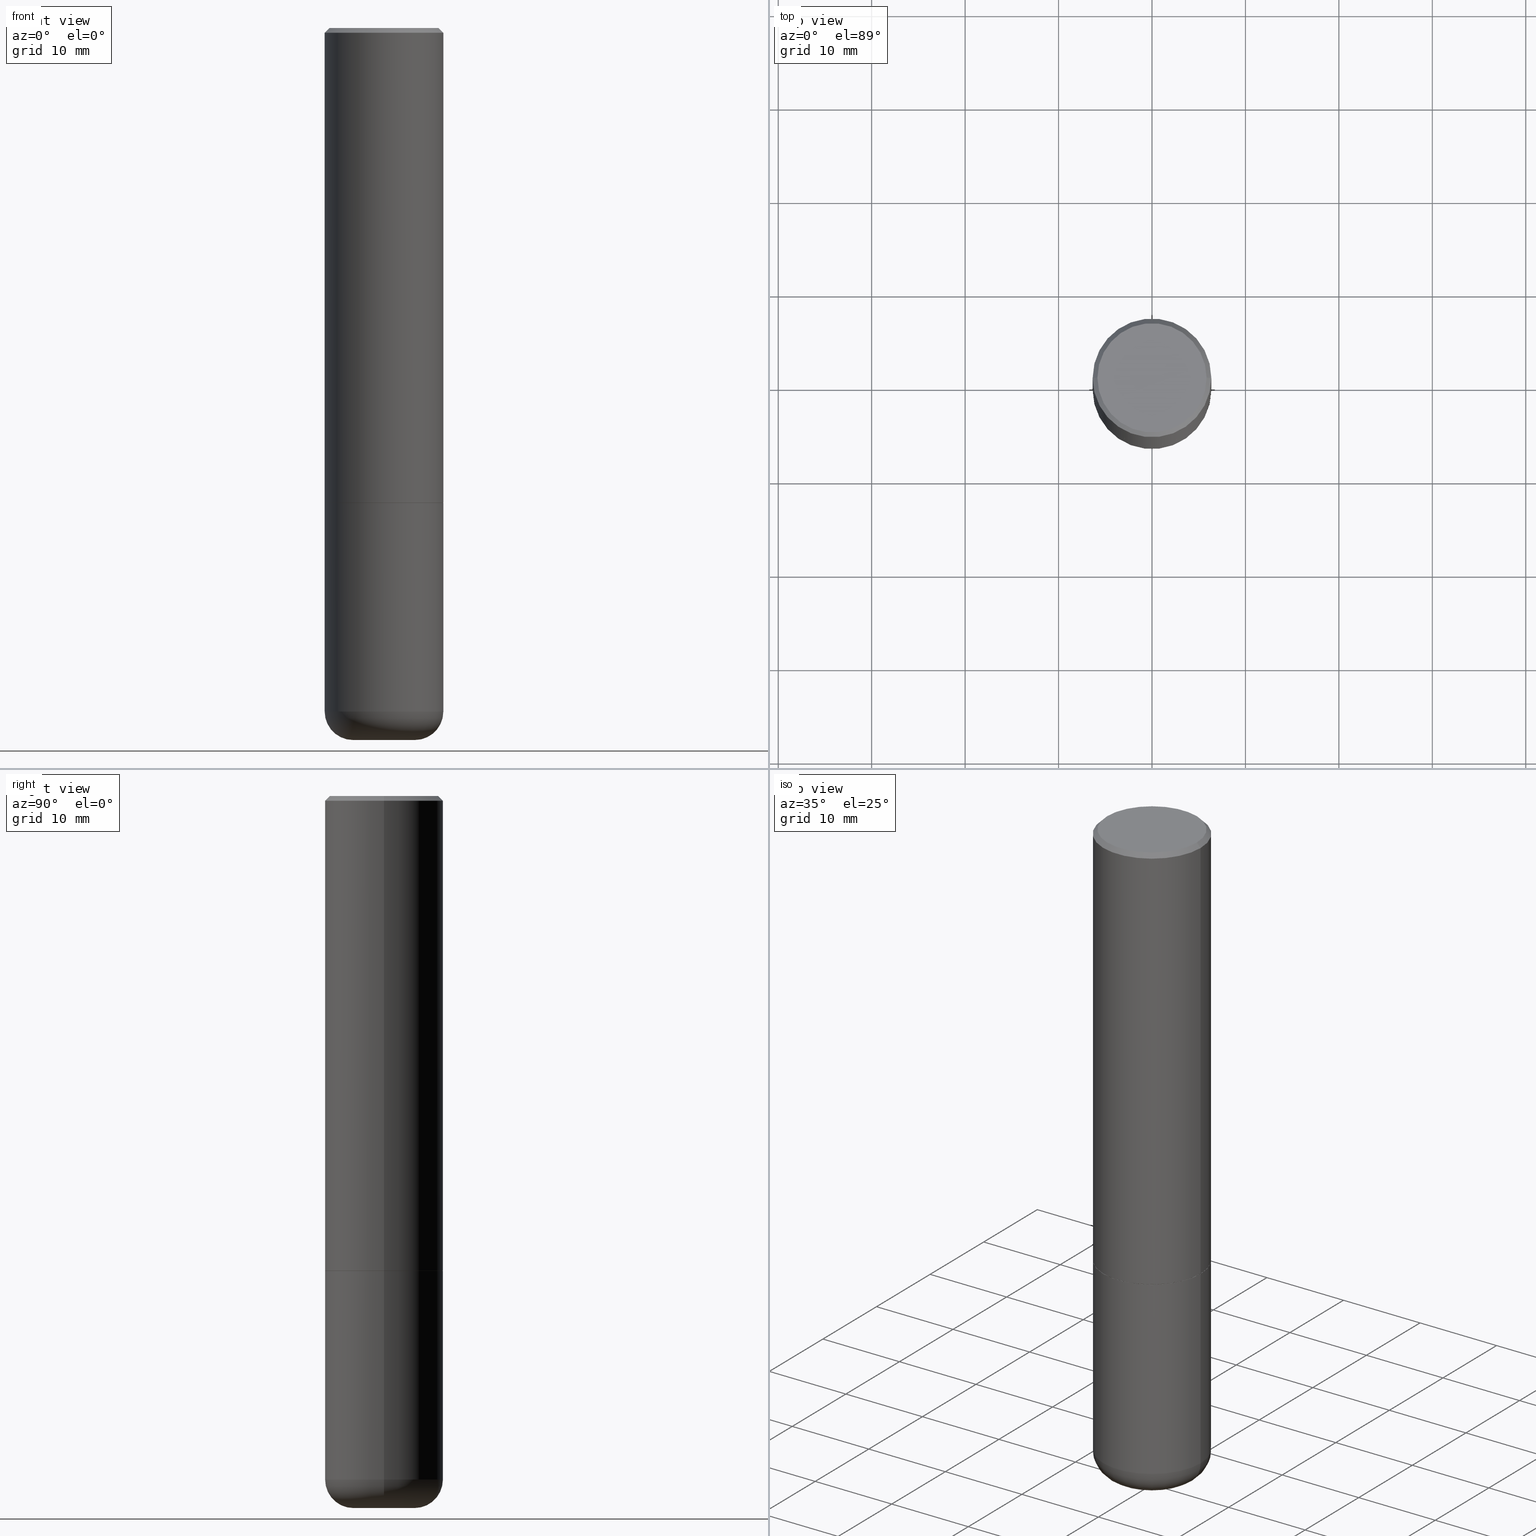
[diagram: canonical four-view strip — front | top / right | iso, engineering-drawing reading convention]
A machine part, canonical four-view strip (front | top / right | iso — engineering-drawing reading convention). The complete STEP part file that produces these views, byte-faithful:
ISO-10303-21;
HEADER;
FILE_DESCRIPTION (( 'STEP AP203' ),
    '1' );
FILE_NAME ('38542.STEP',
    '2024-03-03T03:59:35',
    ( '' ),
    ( '' ),
    'SwSTEP 2.0',
    'SolidWorks 2023',
    '' );
FILE_SCHEMA (( 'CONFIG_CONTROL_DESIGN' ));
ENDSEC;

DATA;
#1 = DIRECTION ( 'NONE',  ( -2.445468806185136597E-29, 3.491481338843145583E-15, 1.000000000000000000 ) ) ;
#2 = ORIENTED_EDGE ( 'NONE', *, *, #172, .F. ) ;
#3 = CARTESIAN_POINT ( 'NONE',  ( 4.890937612370287172E-31, -6.982962677686310098E-17, -0.02000000000000005593 ) ) ;
#4 = TOROIDAL_SURFACE ( 'NONE', #195, 0.1300000000000000044, 0.1199999999999999123 ) ;
#5 = CARTESIAN_POINT ( 'NONE',  ( 4.890937612370274875E-29, -6.982962677686292743E-15, -2.000000000000000444 ) ) ;
#6 = DIRECTION ( 'NONE',  ( -2.445468806185136597E-29, 3.491481338843145583E-15, 1.000000000000000000 ) ) ;
#7 = VERTEX_POINT ( 'NONE', #149 ) ;
#8 = CYLINDRICAL_SURFACE ( 'NONE', #22, 0.2500000000000001110 ) ;
#9 = EDGE_CURVE ( 'NONE', #396, #68, #80, .T. ) ;
#10 = LINE ( 'NONE', #102, #81 ) ;
#11 = LINE ( 'NONE', #135, #163 ) ;
#12 = AXIS2_PLACEMENT_3D ( 'NONE', #133, #42, #79 ) ;
#13 = AXIS2_PLACEMENT_3D ( 'NONE', #158, #315, #124 ) ;
#14 = AXIS2_PLACEMENT_3D ( 'NONE', #395, #6, #104 ) ;
#15 = COORDINATED_UNIVERSAL_TIME_OFFSET ( 5, 0, .BEHIND. ) ;
#16 = DATE_AND_TIME ( #178, #38 ) ;
#17 = ADVANCED_FACE ( 'NONE', ( #241 ), #4, .T. ) ;
#18 = CALENDAR_DATE ( 2024, 2, 3 ) ;
#19 = FACE_OUTER_BOUND ( 'NONE', #61, .T. ) ;
#20 = ORIENTED_EDGE ( 'NONE', *, *, #47, .F. ) ;
#21 = CIRCLE ( 'NONE', #101, 0.2489999999999999991 ) ;
#22 = AXIS2_PLACEMENT_3D ( 'NONE', #203, #107, #231 ) ;
#23 = PERSON_AND_ORGANIZATION ( #123, #334 ) ;
#24 = ORIENTED_EDGE ( 'NONE', *, *, #75, .T. ) ;
#25 = DIRECTION ( 'NONE',  ( 1.000000000000000000, 0.000000000000000000, 0.000000000000000000 ) ) ;
#26 = CARTESIAN_POINT ( 'NONE',  ( 7.336406418555409790E-29, -1.047444401652943635E-14, -3.000000000000000444 ) ) ;
#27 = ADVANCED_FACE ( 'NONE', ( #344 ), #110, .T. ) ;
#28 = CARTESIAN_POINT ( 'NONE',  ( 4.890937612370287172E-31, -6.982962677686310098E-17, -0.02000000000000005593 ) ) ;
#29 = AXIS2_PLACEMENT_3D ( 'NONE', #74, #92, #348 ) ;
#30 = CC_DESIGN_APPROVAL ( #230, ( #341 ) ) ;
#31 = LINE ( 'NONE', #96, #247 ) ;
#32 = ORIENTED_EDGE ( 'NONE', *, *, #162, .F. ) ;
#33 = FACE_OUTER_BOUND ( 'NONE', #189, .T. ) ;
#34 = DIRECTION ( 'NONE',  ( -2.445468806185136597E-29, 3.491481338843145583E-15, 1.000000000000000000 ) ) ;
#35 = ORIENTED_EDGE ( 'NONE', *, *, #9, .T. ) ;
#36 = DIRECTION ( 'NONE',  ( 2.438088387897960049E-29, -3.491481338843145188E-15, -1.000000000000000000 ) ) ;
#37 = AXIS2_PLACEMENT_3D ( 'NONE', #120, #1, #62 ) ;
#38 = LOCAL_TIME ( 22, 59, 35.00000000000000000, #338 ) ;
#39 = EDGE_LOOP ( 'NONE', ( #129, #353 ) ) ;
#40 = CARTESIAN_POINT ( 'NONE',  ( 0.2489999999999999991, -8.721720384430172617E-15, -2.000000000000000444 ) ) ;
#41 = EDGE_LOOP ( 'NONE', ( #322, #153, #128, #32 ) ) ;
#42 = DIRECTION ( 'NONE',  ( -2.445468806185136597E-29, 3.491481338843145583E-15, 1.000000000000000000 ) ) ;
#43 = EDGE_CURVE ( 'NONE', #410, #373, #330, .T. ) ;
#44 = CIRCLE ( 'NONE', #343, 0.1300000000000000044 ) ;
#45 = LOCAL_TIME ( 22, 59, 35.00000000000000000, #304 ) ;
#46 = CARTESIAN_POINT ( 'NONE',  ( 0.2299999999999998990, -1.681434332853598617E-15, 9.817578727232095644E-17 ) ) ;
#47 = EDGE_CURVE ( 'NONE', #373, #160, #186, .T. ) ;
#48 = DATE_TIME_ROLE ( 'creation_date' ) ;
#49 = AXIS2_PLACEMENT_3D ( 'NONE', #229, #267, #167 ) ;
#50 = APPROVAL_STATUS ( 'not_yet_approved' ) ;
#51 = DIRECTION ( 'NONE',  ( -2.445468806185136597E-29, 3.491481338843145583E-15, 1.000000000000000000 ) ) ;
#52 = DIRECTION ( 'NONE',  ( -2.445468806185136597E-29, 3.491481338843145583E-15, 1.000000000000000000 ) ) ;
#53 = CC_DESIGN_PERSON_AND_ORGANIZATION_ASSIGNMENT ( #211, #148, ( #341 ) ) ;
#54 = CARTESIAN_POINT ( 'NONE',  ( 7.042950161813194609E-29, -1.005546625586826130E-14, -2.880000000000000338 ) ) ;
#55 = EDGE_LOOP ( 'NONE', ( #415, #94, #290, #260 ) ) ;
#56 = AXIS2_PLACEMENT_3D ( 'NONE', #28, #52, #366 ) ;
#57 = AXIS2_PLACEMENT_3D ( 'NONE', #364, #358, #301 ) ;
#58 = DIRECTION ( 'NONE',  ( -2.438088387897960049E-29, 3.491481338843145188E-15, 1.000000000000000000 ) ) ;
#59 = EDGE_CURVE ( 'NONE', #410, #286, #284, .T. ) ;
#60 = DIRECTION ( 'NONE',  ( 7.105427357601001859E-15, 1.000000000000000000, -3.491481338843145583E-15 ) ) ;
#61 = EDGE_LOOP ( 'NONE', ( #115, #261 ) ) ;
#62 = DIRECTION ( 'NONE',  ( 1.000000000000000000, -6.982962677686266711E-15, 0.000000000000000000 ) ) ;
#63 = ORIENTED_EDGE ( 'NONE', *, *, #381, .T. ) ;
#64 = AXIS2_PLACEMENT_3D ( 'NONE', #236, #60, #183 ) ;
#65 = CC_DESIGN_SECURITY_CLASSIFICATION ( #240, ( #146 ) ) ;
#66 = DIRECTION ( 'NONE',  ( -2.445468806185136597E-29, 3.491481338843145583E-15, 1.000000000000000000 ) ) ;
#67 = CC_DESIGN_DATE_AND_TIME_ASSIGNMENT ( #335, #48, ( #341 ) ) ;
#68 = VERTEX_POINT ( 'NONE', #141 ) ;
#69 = CARTESIAN_POINT ( 'NONE',  ( 4.890937612370273754E-29, -6.982962677686291954E-15, -2.000000000000000444 ) ) ;
#70 = VERTEX_POINT ( 'NONE', #405 ) ;
#71 = CARTESIAN_POINT ( 'NONE',  ( 0.2500000000000000000, -8.728703347107858632E-15, -2.000000000000000444 ) ) ;
#72 = ORIENTED_EDGE ( 'NONE', *, *, #360, .T. ) ;
#73 = AXIS2_PLACEMENT_3D ( 'NONE', #350, #36, #252 ) ;
#74 = CARTESIAN_POINT ( 'NONE',  ( -2.400858252971005371E-45, 3.427789291875028588E-31, 9.817578727230945633E-17 ) ) ;
#75 = EDGE_CURVE ( 'NONE', #160, #251, #113, .T. ) ;
#76 = CARTESIAN_POINT ( 'NONE',  ( -0.2500000000000000000, 1.675911042644703577E-15, -0.02000000000000005593 ) ) ;
#77 = CARTESIAN_POINT ( 'NONE',  ( 0.000000000000000000, 0.000000000000000000, 0.000000000000000000 ) ) ;
#78 = ADVANCED_FACE ( 'NONE', ( #19 ), #84, .F. ) ;
#79 = DIRECTION ( 'NONE',  ( 1.000000000000000000, -6.982962677686265133E-15, 4.883557194083112340E-29 ) ) ;
#80 = CIRCLE ( 'NONE', #56, 0.2500000000000000000 ) ;
#81 = VECTOR ( 'NONE', #165, 39.37007874015748143 ) ;
#82 = APPROVAL_STATUS ( 'not_yet_approved' ) ;
#83 = CC_DESIGN_PERSON_AND_ORGANIZATION_ASSIGNMENT ( #23, #342, ( #146 ) ) ;
#84 = PLANE ( 'NONE',  #125 ) ;
#85 = CALENDAR_DATE ( 2024, 2, 3 ) ;
#86 = ORIENTED_EDGE ( 'NONE', *, *, #75, .F. ) ;
#87 = DIRECTION ( 'NONE',  ( 1.000000000000000000, -6.982962677686265133E-15, 4.883557194083112340E-29 ) ) ;
#88 = ADVANCED_FACE ( 'NONE', ( #181 ), #180, .T. ) ;
#89 = AXIS2_PLACEMENT_3D ( 'NONE', #285, #164, #292 ) ;
#90 = APPROVAL_STATUS ( 'not_yet_approved' ) ;
#91 = DIRECTION ( 'NONE',  ( 2.438088387897960049E-29, -3.491481338843145188E-15, -1.000000000000000000 ) ) ;
#92 = DIRECTION ( 'NONE',  ( -2.445468806185136597E-29, 3.491481338843145583E-15, 1.000000000000000000 ) ) ;
#93 = CARTESIAN_POINT ( 'NONE',  ( 4.888492143564088712E-29, -6.979471196347448158E-15, -1.999000000000000110 ) ) ;
#94 = ORIENTED_EDGE ( 'NONE', *, *, #388, .T. ) ;
#95 = AXIS2_PLACEMENT_3D ( 'NONE', #339, #51, #411 ) ;
#96 = CARTESIAN_POINT ( 'NONE',  ( 0.2489999999999999991, -8.721720384430172617E-15, -2.000000000000000444 ) ) ;
#97 = CARTESIAN_POINT ( 'NONE',  ( 4.890937612370274875E-29, -6.982962677686292743E-15, -2.000000000000000444 ) ) ;
#98 = CARTESIAN_POINT ( 'NONE',  ( -0.2489999999999999991, -5.213711265643643286E-15, -2.000000000000000444 ) ) ;
#99 = ORIENTED_EDGE ( 'NONE', *, *, #138, .T. ) ;
#100 = ADVANCED_FACE ( 'NONE', ( #117 ), #246, .F. ) ;
#101 = AXIS2_PLACEMENT_3D ( 'NONE', #5, #34, #257 ) ;
#102 = CARTESIAN_POINT ( 'NONE',  ( -0.2500000000000001110, 1.776356839400251254E-15, -1.229733772563727146E-29 ) ) ;
#103 = VECTOR ( 'NONE', #297, 39.37007874015748143 ) ;
#104 = DIRECTION ( 'NONE',  ( 1.000000000000000000, -6.982962677686268288E-15, 0.000000000000000000 ) ) ;
#105 = DIRECTION ( 'NONE',  ( -2.445468806185136597E-29, 3.491481338843145583E-15, 1.000000000000000000 ) ) ;
#106 = PRODUCT_RELATED_PRODUCT_CATEGORY ( 'detail', '', ( #362 ) ) ;
#107 = DIRECTION ( 'NONE',  ( -2.445468806185136597E-29, 3.491481338843145583E-15, 1.000000000000000000 ) ) ;
#108 = FACE_OUTER_BOUND ( 'NONE', #166, .T. ) ;
#109 = DATE_AND_TIME ( #245, #187 ) ;
#110 = CYLINDRICAL_SURFACE ( 'NONE', #95, 0.2500000000000001110 ) ;
#111 = EDGE_CURVE ( 'NONE', #244, #68, #271, .T. ) ;
#112 = PERSON_AND_ORGANIZATION_ROLE ( 'creator' ) ;
#113 = LINE ( 'NONE', #369, #215 ) ;
#114 = CIRCLE ( 'NONE', #349, 0.2500000000000000000 ) ;
#115 = ORIENTED_EDGE ( 'NONE', *, *, #177, .F. ) ;
#116 = SECURITY_CLASSIFICATION_LEVEL ( 'unclassified' ) ;
#117 = FACE_OUTER_BOUND ( 'NONE', #345, .T. ) ;
#118 = ORIENTED_EDGE ( 'NONE', *, *, #111, .F. ) ;
#119 = CIRCLE ( 'NONE', #168, 0.2500000000000002220 ) ;
#120 = CARTESIAN_POINT ( 'NONE',  ( 4.890937612370273754E-29, -6.982962677686291954E-15, -2.000000000000000444 ) ) ;
#121 = CARTESIAN_POINT ( 'NONE',  ( 0.2500000000000002220, -8.725211865769017202E-15, -1.999000000000000110 ) ) ;
#122 = ORIENTED_EDGE ( 'NONE', *, *, #274, .F. ) ;
#123 = PERSON ( 'UNSPECIFIED', 'UNSPECIFIED', 'UNSPECIFIED', ('UNSPECIFIED'), ('UNSPECIFIED'), ('UNSPECIFIED') ) ;
#124 = DIRECTION ( 'NONE',  ( 1.000000000000000000, -6.982962677686266711E-15, 0.000000000000000000 ) ) ;
#125 = AXIS2_PLACEMENT_3D ( 'NONE', #210, #58, #143 ) ;
#126 = DIRECTION ( 'NONE',  ( -2.445468806185136597E-29, 3.491481338843145583E-15, 1.000000000000000000 ) ) ;
#127 = LINE ( 'NONE', #98, #323 ) ;
#128 = ORIENTED_EDGE ( 'NONE', *, *, #360, .F. ) ;
#129 = ORIENTED_EDGE ( 'NONE', *, *, #248, .F. ) ;
#130 = CLOSED_SHELL ( 'NONE', ( #233, #27, #88, #295, #402, #306, #78, #100 ) ) ;
#131 = CIRCLE ( 'NONE', #14, 0.2500000000000002220 ) ;
#132 = CC_DESIGN_PERSON_AND_ORGANIZATION_ASSIGNMENT ( #206, #307, ( #362 ) ) ;
#133 = CARTESIAN_POINT ( 'NONE',  ( 7.042950161813194609E-29, -1.005546625586826130E-14, -2.880000000000000338 ) ) ;
#134 = CYLINDRICAL_SURFACE ( 'NONE', #228, 0.2500000000000000000 ) ;
#135 = CARTESIAN_POINT ( 'NONE',  ( -0.2500000000000000000, 1.675911042644703577E-15, -0.02000000000000005593 ) ) ;
#136 = MANIFOLD_SOLID_BREP ( 'Body-Move/Copy2[1]', #239 ) ;
#137 = CIRCLE ( 'NONE', #333, 0.2500000000000000000 ) ;
#138 = EDGE_CURVE ( 'NONE', #351, #312, #413, .T. ) ;
#139 = APPLICATION_PROTOCOL_DEFINITION ( 'international standard', 'config_control_design', 1994, #378 ) ;
#140 = ADVANCED_BREP_SHAPE_REPRESENTATION ( '38542', ( #136, #276, #400 ), #208 ) ;
#141 = CARTESIAN_POINT ( 'NONE',  ( 0.2500000000000000000, -1.784954126219746189E-15, -0.02000000000000005593 ) ) ;
#142 = CARTESIAN_POINT ( 'NONE',  ( 0.000000000000000000, 0.000000000000000000, 0.000000000000000000 ) ) ;
#143 = DIRECTION ( 'NONE',  ( 1.000000000000000000, -6.982962677686265922E-15, 4.876176775795935793E-29 ) ) ;
#144 = TOROIDAL_SURFACE ( 'NONE', #12, 0.1300000000000000044, 0.1199999999999999123 ) ;
#145 = ORIENTED_EDGE ( 'NONE', *, *, #172, .T. ) ;
#146 = PRODUCT_DEFINITION_FORMATION_WITH_SPECIFIED_SOURCE ( 'ANY', '', #362, .NOT_KNOWN. ) ;
#147 = EDGE_CURVE ( 'NONE', #373, #7, #352, .T. ) ;
#148 = PERSON_AND_ORGANIZATION_ROLE ( 'creator' ) ;
#149 = CARTESIAN_POINT ( 'NONE',  ( -0.2500000000000000000, -6.742857627377025372E-15, -2.000000000000000444 ) ) ;
#150 = ORIENTED_EDGE ( 'NONE', *, *, #177, .T. ) ;
#151 = DIRECTION ( 'NONE',  ( -2.445468806185136877E-29, 3.491481338843145188E-15, 1.000000000000000000 ) ) ;
#152 = DIRECTION ( 'NONE',  ( -2.445468806185136877E-29, 3.491481338843145188E-15, 1.000000000000000000 ) ) ;
#153 = ORIENTED_EDGE ( 'NONE', *, *, #43, .T. ) ;
#154 = CIRCLE ( 'NONE', #37, 0.2500000000000000000 ) ;
#155 = DIRECTION ( 'NONE',  ( 1.000000000000000000, -6.982962677686268288E-15, 0.000000000000000000 ) ) ;
#156 = ORIENTED_EDGE ( 'NONE', *, *, #59, .T. ) ;
#157 = ADVANCED_FACE ( 'NONE', ( #325 ), #223, .T. ) ;
#158 = CARTESIAN_POINT ( 'NONE',  ( 4.890937612370274875E-29, -6.982962677686292743E-15, -2.000000000000000444 ) ) ;
#159 = DIRECTION ( 'NONE',  ( 1.000000000000000000, -6.982962677686266711E-15, 0.000000000000000000 ) ) ;
#160 = VERTEX_POINT ( 'NONE', #255 ) ;
#161 = CIRCLE ( 'NONE', #200, 0.1199999999999999262 ) ;
#162 = EDGE_CURVE ( 'NONE', #286, #160, #161, .T. ) ;
#163 = VECTOR ( 'NONE', #232, 39.37007874015748143 ) ;
#164 = DIRECTION ( 'NONE',  ( 2.445468806185136597E-29, -3.491481338843145583E-15, -1.000000000000000000 ) ) ;
#165 = DIRECTION ( 'NONE',  ( -2.445468806185136877E-29, 3.491481338843145188E-15, 1.000000000000000000 ) ) ;
#166 = EDGE_LOOP ( 'NONE', ( #372, #145 ) ) ;
#167 = DIRECTION ( 'NONE',  ( 1.000000000000000000, -6.982962677686267499E-15, 4.879110437680777679E-29 ) ) ;
#168 = AXIS2_PLACEMENT_3D ( 'NONE', #93, #196, #155 ) ;
#169 = FACE_OUTER_BOUND ( 'NONE', #55, .T. ) ;
#170 =( NAMED_UNIT ( * ) SI_UNIT ( $, .STERADIAN. ) SOLID_ANGLE_UNIT ( ) );
#171 = DIRECTION ( 'NONE',  ( 0.000000000000000000, 0.000000000000000000, 1.000000000000000000 ) ) ;
#172 = EDGE_CURVE ( 'NONE', #7, #251, #137, .T. ) ;
#173 = AXIS2_PLACEMENT_3D ( 'NONE', #212, #179, #282 ) ;
#174 = MECHANICAL_CONTEXT ( 'NONE', #237, 'mechanical' ) ;
#175 = CARTESIAN_POINT ( 'NONE',  ( 7.042950161813194609E-29, -1.005546625586826130E-14, -2.880000000000000338 ) ) ;
#176 = DIRECTION ( 'NONE',  ( 1.000000000000000000, -6.982962677686262766E-15, 0.000000000000000000 ) ) ;
#177 = EDGE_CURVE ( 'NONE', #326, #340, #399, .T. ) ;
#178 = CALENDAR_DATE ( 2024, 2, 3 ) ;
#179 = DIRECTION ( 'NONE',  ( 2.445468806185136597E-29, -3.491481338843145583E-15, -1.000000000000000000 ) ) ;
#180 = CONICAL_SURFACE ( 'NONE', #173, 0.2500000000000000000, 0.7853981633974468357 ) ;
#181 = FACE_OUTER_BOUND ( 'NONE', #226, .T. ) ;
#182 = EDGE_LOOP ( 'NONE', ( #150, #356, #224, #122 ) ) ;
#183 = DIRECTION ( 'NONE',  ( -1.000000000000000000, 7.105427357601003436E-15, 0.000000000000000000 ) ) ;
#184 = FACE_OUTER_BOUND ( 'NONE', #418, .T. ) ;
#185 = EDGE_LOOP ( 'NONE', ( #314, #337, #24, #2 ) ) ;
#186 = CIRCLE ( 'NONE', #207, 0.2500000000000000000 ) ;
#187 = LOCAL_TIME ( 22, 59, 35.00000000000000000, #403 ) ;
#188 = DIRECTION ( 'NONE',  ( -2.445468806185136877E-29, 3.491481338843145188E-15, 1.000000000000000000 ) ) ;
#189 = EDGE_LOOP ( 'NONE', ( #191, #279, #386, #194 ) ) ;
#190 = CARTESIAN_POINT ( 'NONE',  ( -0.2500000000000000000, 1.776356839400250465E-15, -1.229733772563726445E-29 ) ) ;
#191 = ORIENTED_EDGE ( 'NONE', *, *, #300, .F. ) ;
#192 = DIMENSIONAL_EXPONENTS ( 1.000000000000000000, 0.000000000000000000, 0.000000000000000000, 0.000000000000000000, 0.000000000000000000, 0.000000000000000000, 0.000000000000000000 ) ;
#193 = CARTESIAN_POINT ( 'NONE',  ( 0.000000000000000000, 0.000000000000000000, 0.000000000000000000 ) ) ;
#194 = ORIENTED_EDGE ( 'NONE', *, *, #388, .F. ) ;
#195 = AXIS2_PLACEMENT_3D ( 'NONE', #175, #273, #87 ) ;
#196 = DIRECTION ( 'NONE',  ( -2.445468806185136597E-29, 3.491481338843145583E-15, 1.000000000000000000 ) ) ;
#197 = ORIENTED_EDGE ( 'NONE', *, *, #162, .T. ) ;
#198 = CARTESIAN_POINT ( 'NONE',  ( -0.1300000000000000044, -8.914923938254659640E-15, -3.000000000000000444 ) ) ;
#199 = EDGE_CURVE ( 'NONE', #340, #326, #21, .T. ) ;
#200 = AXIS2_PLACEMENT_3D ( 'NONE', #355, #321, #289 ) ;
#201 = DIRECTION ( 'NONE',  ( 1.000000000000000000, -6.982962677686266711E-15, 4.876176775795935793E-29 ) ) ;
#202 = CIRCLE ( 'NONE', #394, 0.2500000000000000000 ) ;
#203 = CARTESIAN_POINT ( 'NONE',  ( 0.000000000000000000, 0.000000000000000000, 0.000000000000000000 ) ) ;
#204 = EDGE_CURVE ( 'NONE', #68, #396, #114, .T. ) ;
#205 = LINE ( 'NONE', #266, #103 ) ;
#206 = PERSON_AND_ORGANIZATION ( #123, #334 ) ;
#207 = AXIS2_PLACEMENT_3D ( 'NONE', #54, #305, #176 ) ;
#208 =( GEOMETRIC_REPRESENTATION_CONTEXT ( 3 ) GLOBAL_UNCERTAINTY_ASSIGNED_CONTEXT ( ( #313 ) ) GLOBAL_UNIT_ASSIGNED_CONTEXT ( ( #392, #332, #170 ) ) REPRESENTATION_CONTEXT ( 'NONE', 'WORKASPACE' ) );
#209 = COORDINATED_UNIVERSAL_TIME_OFFSET ( 5, 0, .BEHIND. ) ;
#210 = CARTESIAN_POINT ( 'NONE',  ( 4.890937612370274875E-29, -6.982962677686292743E-15, -2.000000000000000444 ) ) ;
#211 = PERSON_AND_ORGANIZATION ( #123, #334 ) ;
#212 = CARTESIAN_POINT ( 'NONE',  ( 4.890937612370287172E-31, -6.982962677686310098E-17, -0.02000000000000005593 ) ) ;
#213 = ORIENTED_EDGE ( 'NONE', *, *, #43, .F. ) ;
#214 = DATE_AND_TIME ( #18, #264 ) ;
#215 = VECTOR ( 'NONE', #151, 39.37007874015748143 ) ;
#216 = DIRECTION ( 'NONE',  ( -1.000000000000000000, 6.982962677686265922E-15, -4.876176775795935793E-29 ) ) ;
#217 = EDGE_CURVE ( 'NONE', #244, #70, #119, .T. ) ;
#218 = DIRECTION ( 'NONE',  ( -2.445468806185136597E-29, 3.491481338843145583E-15, 1.000000000000000000 ) ) ;
#219 = CARTESIAN_POINT ( 'NONE',  ( 0.2500000000000001110, -1.745740669421567664E-15, 1.219044193948984649E-29 ) ) ;
#220 = AXIS2_PLACEMENT_3D ( 'NONE', #97, #379, #288 ) ;
#221 = DIRECTION ( 'NONE',  ( 0.7071067811865112684, -2.468850131081876830E-15, 0.7071067811865837660 ) ) ;
#222 = ORIENTED_EDGE ( 'NONE', *, *, #147, .T. ) ;
#223 = CYLINDRICAL_SURFACE ( 'NONE', #298, 0.2500000000000000000 ) ;
#224 = ORIENTED_EDGE ( 'NONE', *, *, #217, .F. ) ;
#225 = DIRECTION ( 'NONE',  ( -0.7071067811865112684, 7.493145998870223209E-15, 0.7071067811865837660 ) ) ;
#226 = EDGE_LOOP ( 'NONE', ( #258, #317, #391, #296 ) ) ;
#227 = CONICAL_SURFACE ( 'NONE', #220, 0.2489999999999999991, 0.7853981633973970977 ) ;
#228 = AXIS2_PLACEMENT_3D ( 'NONE', #77, #105, #201 ) ;
#229 = CARTESIAN_POINT ( 'NONE',  ( -2.400858252971005371E-45, 3.427789291875028588E-31, 9.817578727230945633E-17 ) ) ;
#230 = APPROVAL ( #90, 'UNSPECIFIED' ) ;
#231 = DIRECTION ( 'NONE',  ( 1.000000000000000000, -6.982962677686267499E-15, 4.876176775795936353E-29 ) ) ;
#232 = DIRECTION ( 'NONE',  ( -0.7071067811865464625, 2.468850131082245622E-15, -0.7071067811865485719 ) ) ;
#233 = ADVANCED_FACE ( 'NONE', ( #390 ), #227, .T. ) ;
#234 = PLANE ( 'NONE',  #57 ) ;
#235 = DATE_TIME_ROLE ( 'classification_date' ) ;
#236 = CARTESIAN_POINT ( 'NONE',  ( -0.1300000000000000044, -9.131760699380130235E-15, -2.880000000000000338 ) ) ;
#237 = APPLICATION_CONTEXT ( 'configuration controlled 3d designs of mechanical parts and assemblies' ) ;
#238 = PERSON_AND_ORGANIZATION ( #123, #334 ) ;
#239 = CLOSED_SHELL ( 'NONE', ( #407, #309, #365, #157, #17, #281 ) ) ;
#240 = SECURITY_CLASSIFICATION ( '', '', #116 ) ;
#241 = FACE_OUTER_BOUND ( 'NONE', #320, .T. ) ;
#242 = PERSON_AND_ORGANIZATION ( #123, #334 ) ;
#243 = ORIENTED_EDGE ( 'NONE', *, *, #324, .T. ) ;
#244 = VERTEX_POINT ( 'NONE', #121 ) ;
#245 = CALENDAR_DATE ( 2024, 2, 3 ) ;
#246 = PLANE ( 'NONE',  #367 ) ;
#247 = VECTOR ( 'NONE', #221, 39.37007874015748143 ) ;
#248 = EDGE_CURVE ( 'NONE', #286, #410, #44, .T. ) ;
#249 = LOCAL_TIME ( 22, 59, 35.00000000000000000, #15 ) ;
#250 = DIRECTION ( 'NONE',  ( 1.000000000000000000, -6.982962677686273810E-15, 0.000000000000000000 ) ) ;
#251 = VERTEX_POINT ( 'NONE', #71 ) ;
#252 = DIRECTION ( 'NONE',  ( -1.000000000000000000, 6.982962677686265922E-15, -4.876176775795935793E-29 ) ) ;
#253 = EDGE_LOOP ( 'NONE', ( #389, #63, #347, #118 ) ) ;
#254 = APPROVAL ( #82, 'UNSPECIFIED' ) ;
#255 = CARTESIAN_POINT ( 'NONE',  ( 0.2499999999999999722, -1.180120692528982640E-14, -2.880000000000000338 ) ) ;
#256 = AXIS2_PLACEMENT_3D ( 'NONE', #26, #374, #409 ) ;
#257 = DIRECTION ( 'NONE',  ( 1.000000000000000000, -6.982962677686266711E-15, 0.000000000000000000 ) ) ;
#258 = ORIENTED_EDGE ( 'NONE', *, *, #324, .F. ) ;
#259 = DIRECTION ( 'NONE',  ( 1.000000000000000000, -6.982962677686266711E-15, 0.000000000000000000 ) ) ;
#260 = ORIENTED_EDGE ( 'NONE', *, *, #9, .F. ) ;
#261 = ORIENTED_EDGE ( 'NONE', *, *, #199, .F. ) ;
#262 = CC_DESIGN_DATE_AND_TIME_ASSIGNMENT ( #109, #235, ( #240 ) ) ;
#263 = AXIS2_PLACEMENT_3D ( 'NONE', #417, #319, #387 ) ;
#264 = LOCAL_TIME ( 22, 59, 35.00000000000000000, #209 ) ;
#265 = CARTESIAN_POINT ( 'NONE',  ( 7.042950161813194609E-29, -1.005546625586826130E-14, -2.880000000000000338 ) ) ;
#266 = CARTESIAN_POINT ( 'NONE',  ( 0.2500000000000000000, -1.784954126219746189E-15, -0.02000000000000005593 ) ) ;
#267 = DIRECTION ( 'NONE',  ( -2.445468806185136597E-29, 3.491481338843145583E-15, 1.000000000000000000 ) ) ;
#268 = CONICAL_SURFACE ( 'NONE', #89, 0.2500000000000000000, 0.7853981633974468357 ) ;
#269 = CC_DESIGN_APPROVAL ( #329, ( #146 ) ) ;
#270 = PERSON_AND_ORGANIZATION ( #123, #334 ) ;
#271 = LINE ( 'NONE', #219, #406 ) ;
#272 = APPROVAL_ROLE ( '' ) ;
#273 = DIRECTION ( 'NONE',  ( -2.445468806185136597E-29, 3.491481338843145583E-15, 1.000000000000000000 ) ) ;
#274 = EDGE_CURVE ( 'NONE', #326, #244, #31, .T. ) ;
#275 = CALENDAR_DATE ( 2024, 2, 3 ) ;
#276 = MANIFOLD_SOLID_BREP ( 'Body-Move/Copy2[2]', #130 ) ;
#277 = CC_DESIGN_APPROVAL ( #254, ( #240 ) ) ;
#278 = SHAPE_DEFINITION_REPRESENTATION ( #303, #140 ) ;
#279 = ORIENTED_EDGE ( 'NONE', *, *, #199, .T. ) ;
#280 = APPROVAL_DATE_TIME ( #16, #329 ) ;
#281 = ADVANCED_FACE ( 'NONE', ( #414 ), #346, .T. ) ;
#282 = DIRECTION ( 'NONE',  ( -1.000000000000000000, 6.982962677686266711E-15, 0.000000000000000000 ) ) ;
#283 = CARTESIAN_POINT ( 'NONE',  ( 7.336406418555409790E-29, -1.047444401652943635E-14, -3.000000000000000444 ) ) ;
#284 = CIRCLE ( 'NONE', #256, 0.1300000000000000044 ) ;
#285 = CARTESIAN_POINT ( 'NONE',  ( 4.890937612370287172E-31, -6.982962677686310098E-17, -0.02000000000000005593 ) ) ;
#286 = VERTEX_POINT ( 'NONE', #318 ) ;
#287 = EDGE_CURVE ( 'NONE', #251, #7, #154, .T. ) ;
#288 = DIRECTION ( 'NONE',  ( 1.000000000000000000, -6.982962677686266711E-15, 0.000000000000000000 ) ) ;
#289 = DIRECTION ( 'NONE',  ( 1.000000000000000000, -6.982962677686272233E-15, 0.000000000000000000 ) ) ;
#290 = ORIENTED_EDGE ( 'NONE', *, *, #111, .T. ) ;
#291 = VECTOR ( 'NONE', #152, 39.37007874015748143 ) ;
#292 = DIRECTION ( 'NONE',  ( -1.000000000000000000, 6.982962677686266711E-15, 0.000000000000000000 ) ) ;
#293 = EDGE_LOOP ( 'NONE', ( #72, #222, #311, #86 ) ) ;
#294 = DIRECTION ( 'NONE',  ( -2.445468806185136597E-29, 3.491481338843145583E-15, 1.000000000000000000 ) ) ;
#295 = ADVANCED_FACE ( 'NONE', ( #184 ), #268, .T. ) ;
#296 = ORIENTED_EDGE ( 'NONE', *, *, #371, .F. ) ;
#297 = DIRECTION ( 'NONE',  ( 0.7071067811865464625, -7.319954787623252890E-15, -0.7071067811865485719 ) ) ;
#298 = AXIS2_PLACEMENT_3D ( 'NONE', #193, #382, #384 ) ;
#299 = APPLICATION_PROTOCOL_DEFINITION ( 'international standard', 'config_control_design', 1994, #237 ) ;
#300 = EDGE_CURVE ( 'NONE', #340, #70, #127, .T. ) ;
#301 = DIRECTION ( 'NONE',  ( -1.000000000000000000, 6.982962677686265922E-15, -4.876176775795935793E-29 ) ) ;
#302 = APPROVAL_DATE_TIME ( #214, #254 ) ;
#303 = PRODUCT_DEFINITION_SHAPE ( 'NONE', 'NONE',  #341 ) ;
#304 = COORDINATED_UNIVERSAL_TIME_OFFSET ( 5, 0, .BEHIND. ) ;
#305 = DIRECTION ( 'NONE',  ( -2.445468806185136597E-29, 3.491481338843145583E-15, 1.000000000000000000 ) ) ;
#306 = ADVANCED_FACE ( 'NONE', ( #33 ), #393, .T. ) ;
#307 = PERSON_AND_ORGANIZATION_ROLE ( 'design_owner' ) ;
#308 = ORIENTED_EDGE ( 'NONE', *, *, #354, .F. ) ;
#309 = ADVANCED_FACE ( 'NONE', ( #331 ), #144, .T. ) ;
#310 = DATE_AND_TIME ( #85, #249 ) ;
#311 = ORIENTED_EDGE ( 'NONE', *, *, #287, .F. ) ;
#312 = VERTEX_POINT ( 'NONE', #46 ) ;
#313 = UNCERTAINTY_MEASURE_WITH_UNIT (LENGTH_MEASURE( 1.000000000000000082E-05 ), #392, 'distance_accuracy_value', 'NONE');
#314 = ORIENTED_EDGE ( 'NONE', *, *, #147, .F. ) ;
#315 = DIRECTION ( 'NONE',  ( -2.445468806185136597E-29, 3.491481338843145583E-15, 1.000000000000000000 ) ) ;
#316 = APPROVAL_PERSON_ORGANIZATION ( #270, #329, #272 ) ;
#317 = ORIENTED_EDGE ( 'NONE', *, *, #354, .T. ) ;
#318 = CARTESIAN_POINT ( 'NONE',  ( 0.1300000000000000044, -1.138222916462865292E-14, -3.000000000000000444 ) ) ;
#319 = DIRECTION ( 'NONE',  ( -2.445468806185136597E-29, 3.491481338843145583E-15, 1.000000000000000000 ) ) ;
#320 = EDGE_LOOP ( 'NONE', ( #213, #156, #197, #20 ) ) ;
#321 = DIRECTION ( 'NONE',  ( -6.982962677686266711E-15, -1.000000000000000000, 3.491481338843145583E-15 ) ) ;
#322 = ORIENTED_EDGE ( 'NONE', *, *, #248, .T. ) ;
#323 = VECTOR ( 'NONE', #225, 39.37007874015748143 ) ;
#324 = EDGE_CURVE ( 'NONE', #312, #351, #357, .T. ) ;
#325 = FACE_OUTER_BOUND ( 'NONE', #185, .T. ) ;
#326 = VERTEX_POINT ( 'NONE', #40 ) ;
#327 = DESIGN_CONTEXT ( 'detailed design', #378, 'design' ) ;
#328 = LENGTH_MEASURE_WITH_UNIT ( LENGTH_MEASURE( 0.02539999999999999897 ), #361 );
#329 = APPROVAL ( #50, 'UNSPECIFIED' ) ;
#330 = CIRCLE ( 'NONE', #64, 0.1199999999999999262 ) ;
#331 = FACE_OUTER_BOUND ( 'NONE', #41, .T. ) ;
#332 =( NAMED_UNIT ( * ) PLANE_ANGLE_UNIT ( ) SI_UNIT ( $, .RADIAN. ) );
#333 = AXIS2_PLACEMENT_3D ( 'NONE', #69, #218, #159 ) ;
#334 = ORGANIZATION ( 'UNSPECIFIED', 'UNSPECIFIED', '' ) ;
#335 = DATE_AND_TIME ( #275, #45 ) ;
#336 = CC_DESIGN_PERSON_AND_ORGANIZATION_ASSIGNMENT ( #238, #408, ( #240 ) ) ;
#337 = ORIENTED_EDGE ( 'NONE', *, *, #47, .T. ) ;
#338 = COORDINATED_UNIVERSAL_TIME_OFFSET ( 5, 0, .BEHIND. ) ;
#339 = CARTESIAN_POINT ( 'NONE',  ( 0.000000000000000000, 0.000000000000000000, 0.000000000000000000 ) ) ;
#340 = VERTEX_POINT ( 'NONE', #359 ) ;
#341 = PRODUCT_DEFINITION ( 'UNKNOWN', '', #146, #327 ) ;
#342 = PERSON_AND_ORGANIZATION_ROLE ( 'design_supplier' ) ;
#343 = AXIS2_PLACEMENT_3D ( 'NONE', #283, #66, #250 ) ;
#344 = FACE_OUTER_BOUND ( 'NONE', #253, .T. ) ;
#345 = EDGE_LOOP ( 'NONE', ( #99, #243 ) ) ;
#346 = PLANE ( 'NONE',  #73 ) ;
#347 = ORIENTED_EDGE ( 'NONE', *, *, #204, .F. ) ;
#348 = DIRECTION ( 'NONE',  ( 1.000000000000000000, -6.982962677686267499E-15, 4.879110437680777679E-29 ) ) ;
#349 = AXIS2_PLACEMENT_3D ( 'NONE', #3, #126, #259 ) ;
#350 = CARTESIAN_POINT ( 'NONE',  ( 7.336406418555409790E-29, -1.047444401652943635E-14, -3.000000000000000444 ) ) ;
#351 = VERTEX_POINT ( 'NONE', #401 ) ;
#352 = LINE ( 'NONE', #190, #291 ) ;
#353 = ORIENTED_EDGE ( 'NONE', *, *, #59, .F. ) ;
#354 = EDGE_CURVE ( 'NONE', #312, #68, #205, .T. ) ;
#355 = CARTESIAN_POINT ( 'NONE',  ( 0.1300000000000000044, -1.096325140396747629E-14, -2.880000000000000338 ) ) ;
#356 = ORIENTED_EDGE ( 'NONE', *, *, #300, .T. ) ;
#357 = CIRCLE ( 'NONE', #49, 0.2299999999999998990 ) ;
#358 = DIRECTION ( 'NONE',  ( 2.438088387897960049E-29, -3.491481338843145188E-15, -1.000000000000000000 ) ) ;
#359 = CARTESIAN_POINT ( 'NONE',  ( -0.2489999999999999991, -5.208412811295420884E-15, -2.000000000000000444 ) ) ;
#360 = EDGE_CURVE ( 'NONE', #160, #373, #202, .T. ) ;
#361 =( LENGTH_UNIT ( ) NAMED_UNIT ( * ) SI_UNIT ( $, .METRE. ) );
#362 = PRODUCT ( '38542', '38542', '', ( #174 ) ) ;
#363 = FACE_OUTER_BOUND ( 'NONE', #293, .T. ) ;
#364 = CARTESIAN_POINT ( 'NONE',  ( 4.890937612370273754E-29, -6.982962677686291954E-15, -2.000000000000000444 ) ) ;
#365 = ADVANCED_FACE ( 'NONE', ( #108 ), #234, .F. ) ;
#366 = DIRECTION ( 'NONE',  ( 1.000000000000000000, -6.982962677686266711E-15, 0.000000000000000000 ) ) ;
#367 = AXIS2_PLACEMENT_3D ( 'NONE', #376, #91, #216 ) ;
#368 = PERSON_AND_ORGANIZATION ( #123, #334 ) ;
#369 = CARTESIAN_POINT ( 'NONE',  ( 0.2500000000000000000, -1.745740669421566678E-15, 1.219044193948983948E-29 ) ) ;
#370 = APPROVAL_DATE_TIME ( #310, #230 ) ;
#371 = EDGE_CURVE ( 'NONE', #351, #396, #11, .T. ) ;
#372 = ORIENTED_EDGE ( 'NONE', *, *, #287, .T. ) ;
#373 = VERTEX_POINT ( 'NONE', #397 ) ;
#374 = DIRECTION ( 'NONE',  ( -2.445468806185136597E-29, 3.491481338843145583E-15, 1.000000000000000000 ) ) ;
#375 = APPROVAL_ROLE ( '' ) ;
#376 = CARTESIAN_POINT ( 'NONE',  ( 1.606081415867840476E-15, 0.2299999999999998990, -7.539528142977684864E-16 ) ) ;
#377 = APPROVAL_PERSON_ORGANIZATION ( #242, #230, #404 ) ;
#378 = APPLICATION_CONTEXT ( 'configuration controlled 3d designs of mechanical parts and assemblies' ) ;
#379 = DIRECTION ( 'NONE',  ( -2.445468806185136597E-29, 3.491481338843145583E-15, 1.000000000000000000 ) ) ;
#380 = ORIENTED_EDGE ( 'NONE', *, *, #138, .F. ) ;
#381 = EDGE_CURVE ( 'NONE', #70, #396, #10, .T. ) ;
#382 = DIRECTION ( 'NONE',  ( -2.445468806185136597E-29, 3.491481338843145583E-15, 1.000000000000000000 ) ) ;
#383 = ORIENTED_EDGE ( 'NONE', *, *, #371, .T. ) ;
#384 = DIRECTION ( 'NONE',  ( 1.000000000000000000, -6.982962677686266711E-15, 4.876176775795935793E-29 ) ) ;
#385 = APPROVAL_PERSON_ORGANIZATION ( #368, #254, #375 ) ;
#386 = ORIENTED_EDGE ( 'NONE', *, *, #274, .T. ) ;
#387 = DIRECTION ( 'NONE',  ( 1.000000000000000000, -6.982962677686266711E-15, 0.000000000000000000 ) ) ;
#388 = EDGE_CURVE ( 'NONE', #70, #244, #131, .T. ) ;
#389 = ORIENTED_EDGE ( 'NONE', *, *, #217, .T. ) ;
#390 = FACE_OUTER_BOUND ( 'NONE', #182, .T. ) ;
#391 = ORIENTED_EDGE ( 'NONE', *, *, #204, .T. ) ;
#392 =( CONVERSION_BASED_UNIT ( 'INCH', #328 ) LENGTH_UNIT ( ) NAMED_UNIT ( #192 ) );
#393 = CONICAL_SURFACE ( 'NONE', #13, 0.2489999999999999991, 0.7853981633973970977 ) ;
#394 = AXIS2_PLACEMENT_3D ( 'NONE', #265, #294, #398 ) ;
#395 = CARTESIAN_POINT ( 'NONE',  ( 4.888492143564088712E-29, -6.979471196347448158E-15, -1.999000000000000110 ) ) ;
#396 = VERTEX_POINT ( 'NONE', #76 ) ;
#397 = CARTESIAN_POINT ( 'NONE',  ( -0.2499999999999999722, -8.279109416468010833E-15, -2.880000000000000338 ) ) ;
#398 = DIRECTION ( 'NONE',  ( 1.000000000000000000, -6.982962677686262766E-15, 0.000000000000000000 ) ) ;
#399 = CIRCLE ( 'NONE', #263, 0.2489999999999999991 ) ;
#400 = AXIS2_PLACEMENT_3D ( 'NONE', #142, #171, #25 ) ;
#401 = CARTESIAN_POINT ( 'NONE',  ( -0.2299999999999998990, 1.640996229256272125E-15, 9.817578727229810413E-17 ) ) ;
#402 = ADVANCED_FACE ( 'NONE', ( #169 ), #8, .T. ) ;
#403 = COORDINATED_UNIVERSAL_TIME_OFFSET ( 5, 0, .BEHIND. ) ;
#404 = APPROVAL_ROLE ( '' ) ;
#405 = CARTESIAN_POINT ( 'NONE',  ( -0.2500000000000002220, -1.748293572161901516E-15, -1.999000000000000110 ) ) ;
#406 = VECTOR ( 'NONE', #188, 39.37007874015748143 ) ;
#407 = ADVANCED_FACE ( 'NONE', ( #363 ), #134, .T. ) ;
#408 = PERSON_AND_ORGANIZATION_ROLE ( 'classification_officer' ) ;
#409 = DIRECTION ( 'NONE',  ( 1.000000000000000000, -6.982962677686273810E-15, 0.000000000000000000 ) ) ;
#410 = VERTEX_POINT ( 'NONE', #198 ) ;
#411 = DIRECTION ( 'NONE',  ( 1.000000000000000000, -6.982962677686267499E-15, 4.876176775795936353E-29 ) ) ;
#412 = PERSON_AND_ORGANIZATION ( #123, #334 ) ;
#413 = CIRCLE ( 'NONE', #29, 0.2299999999999998990 ) ;
#414 = FACE_OUTER_BOUND ( 'NONE', #39, .T. ) ;
#415 = ORIENTED_EDGE ( 'NONE', *, *, #381, .F. ) ;
#416 = CC_DESIGN_PERSON_AND_ORGANIZATION_ASSIGNMENT ( #412, #112, ( #146 ) ) ;
#417 = CARTESIAN_POINT ( 'NONE',  ( 4.890937612370274875E-29, -6.982962677686292743E-15, -2.000000000000000444 ) ) ;
#418 = EDGE_LOOP ( 'NONE', ( #308, #380, #383, #35 ) ) ;
ENDSEC;
END-ISO-10303-21;
